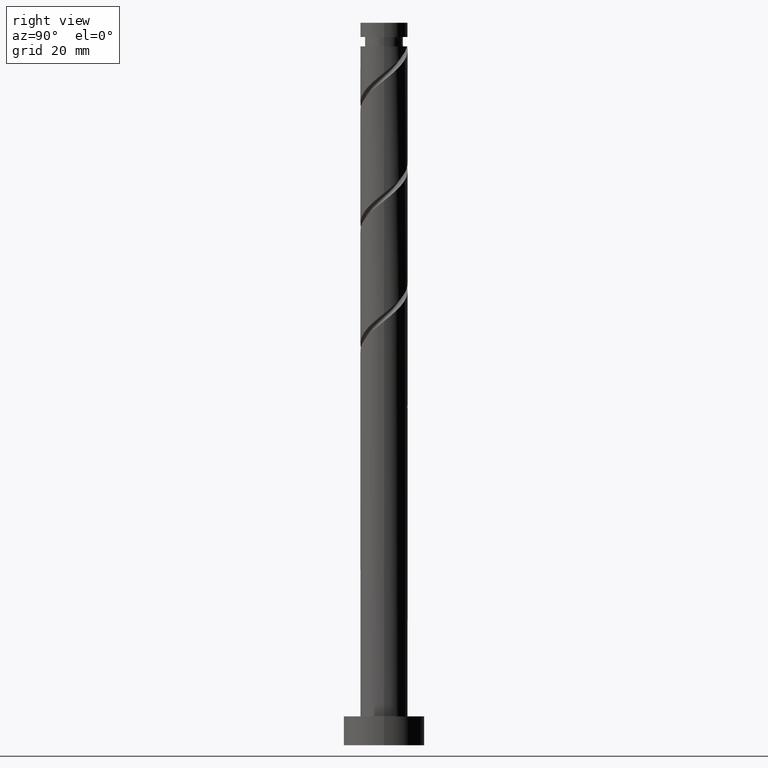
[diagram: clean part render]
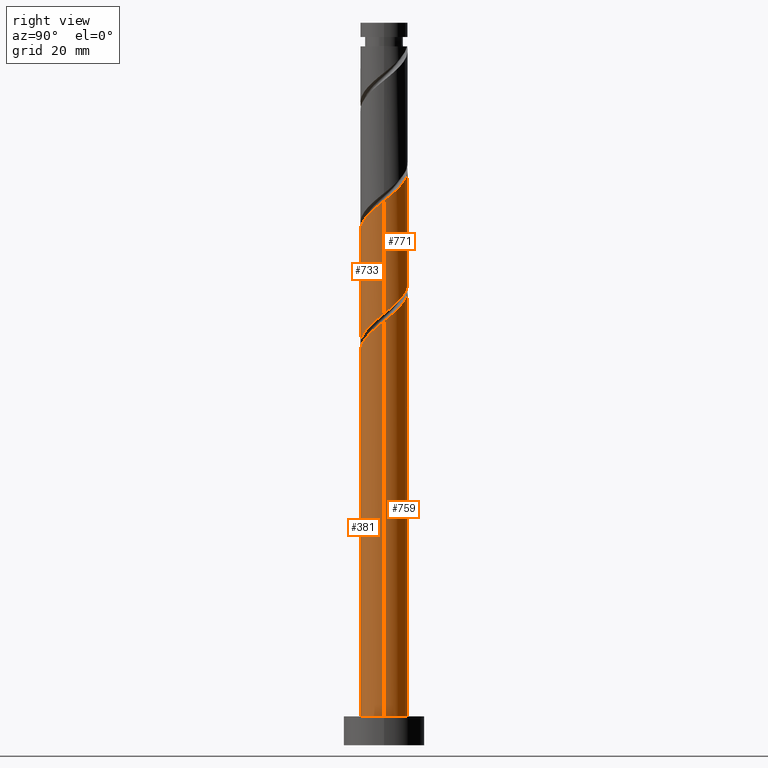
[diagram: same view with one multi-face feature highlighted, each face labeled with its STEP entity id]
A machine part, right view. The highlighted faces form ONE feature: a constant-radius fillet chain: 4 tangent blend faces with common blend radius 4.1 mm. The faces share edges in the B-rep.
Their STEP definitions:
[1] entity #771 (Cylinder):
#31 = CARTESIAN_POINT ( 'NONE',  ( 4.100000000000004086, 0.4120655042562816339, 94.53292070721454365 ) ) ;
#39 = CARTESIAN_POINT ( 'NONE',  ( -2.582896615680652541, 3.249666833500789220, 101.6342519066103023 ) ) ;
#45 = CARTESIAN_POINT ( 'NONE',  ( 0.1795010172034419704, 4.147224233251981751, 79.75925190661027386 ) ) ;
#65 = CARTESIAN_POINT ( 'NONE',  ( 2.017587497666033958, 3.569221300124400642, 78.19675190661027386 ) ) ;
#93 = CARTESIAN_POINT ( 'NONE',  ( 4.099999999999998757, 5.757351468751027389E-15, 74.69488768141388846 ) ) ;
#176 = CARTESIAN_POINT ( 'NONE',  ( 2.292457868830305223, 3.460682934868148930, 97.46758523994360246 ) ) ;
#185 = CARTESIAN_POINT ( 'NONE',  ( 0.000000000000000000, 0.000000000000000000, 125.0000000000000000 ) ) ;
#187 = CARTESIAN_POINT ( 'NONE',  ( 3.569221300124406415, 2.017587497666033958, 95.90508523994358825 ) ) ;
#241 = VERTEX_POINT ( 'NONE', #1258 ) ;
#247 = EDGE_CURVE ( 'NONE', #548, #241, #1321, .T. ) ;
#260 = CARTESIAN_POINT ( 'NONE',  ( 4.100000000000004974, 3.538372256836546220E-15, 94.19861613180670190 ) ) ;
#269 = VERTEX_POINT ( 'NONE', #1147 ) ;
#283 = VECTOR ( 'NONE', #541, 1000.000000000000000 ) ;
#284 = CARTESIAN_POINT ( 'NONE',  ( 3.460682934868145821, 2.292457868830300338, 76.63425190661028807 ) ) ;
#292 = CARTESIAN_POINT ( 'NONE',  ( -1.110847155465531699, 3.999713496394922796, 80.80091857327695948 ) ) ;
#295 = VECTOR ( 'NONE', #1250, 1000.000000000000000 ) ;
#301 = DIRECTION ( 'NONE',  ( -1.000000000000000000, 0.000000000000000000, 0.000000000000000000 ) ) ;
#302 = CARTESIAN_POINT ( 'NONE',  ( -4.073468864823459157, 0.4656730691310462245, 104.2384185732769879 ) ) ;
#378 = VERTEX_POINT ( 'NONE', #93 ) ;
#393 = CARTESIAN_POINT ( 'NONE',  ( -4.017999999999999794, 0.8158896984274289776, 84.44675190661028807 ) ) ;
#409 = CARTESIAN_POINT ( 'NONE',  ( -3.249666833500783447, 2.582896615680648988, 82.88425190661023123 ) ) ;
#419 = CARTESIAN_POINT ( 'NONE',  ( -1.452278379651417151, 3.888775766748021834, 100.5925852399436167 ) ) ;
#427 = CARTESIAN_POINT ( 'NONE',  ( -3.569221300124400642, 2.017587497666033070, 83.40508523994361667 ) ) ;
#518 = CARTESIAN_POINT ( 'NONE',  ( -2.771062351165542559, 3.021789775274398071, 82.36341857327695948 ) ) ;
#527 = CARTESIAN_POINT ( 'NONE',  ( 3.249666833500789664, 2.582896615680652097, 96.42591857327695948 ) ) ;
#541 = DIRECTION ( 'NONE',  ( -0.000000000000000000, -0.000000000000000000, -1.000000000000000000 ) ) ;
#548 = VERTEX_POINT ( 'NONE', #260 ) ;
#551 = CARTESIAN_POINT ( 'NONE',  ( 2.582896615680648988, 3.249666833500783447, 77.67591857327691685 ) ) ;
#552 = CARTESIAN_POINT ( 'NONE',  ( -0.8158896984274283115, 4.018000000000006011, 100.0717519066102739 ) ) ;
#591 = EDGE_CURVE ( 'NONE', #269, #378, #1267, .T. ) ;
#636 = DIRECTION ( 'NONE',  ( -0.000000000000000000, -0.000000000000000000, -1.000000000000000000 ) ) ;
#643 = LINE ( 'NONE', #1383, #283 ) ;
#644 = CARTESIAN_POINT ( 'NONE',  ( 3.888775766748021834, 1.452278379651416040, 95.38425190661024544 ) ) ;
#649 = CARTESIAN_POINT ( 'NONE',  ( -1.701652512147915353, 3.730198215631534531, 81.32175190661027386 ) ) ;
#650 = CARTESIAN_POINT ( 'NONE',  ( -3.021789775274401624, 2.771062351165546556, 102.1550852399436167 ) ) ;
#658 = CARTESIAN_POINT ( 'NONE',  ( -3.888775766748016061, 1.452278379651415596, 83.92591857327694527 ) ) ;
#659 = CARTESIAN_POINT ( 'NONE',  ( -4.100000000000005862, -1.979089567383152402E-15, 104.6152827984734017 ) ) ;
#666 = CARTESIAN_POINT ( 'NONE',  ( -0.4656730691310446701, 4.073468864823453828, 80.28008523994361667 ) ) ;
#701 = EDGE_LOOP ( 'NONE', ( #1447, #840, #1569, #711 ) ) ;
#706 = EDGE_CURVE ( 'NONE', #548, #378, #643, .T. ) ;
#711 = ORIENTED_EDGE ( 'NONE', *, *, #1157, .F. ) ;
#751 = CARTESIAN_POINT ( 'NONE',  ( -2.292457868830301226, 3.460682934868144933, 81.84258523994360246 ) ) ;
#758 = CARTESIAN_POINT ( 'NONE',  ( 1.452278379651415818, 3.888775766748015172, 78.71758523994361667 ) ) ;
#768 = CARTESIAN_POINT ( 'NONE',  ( 0.4656730691310470571, 4.073468864823459157, 99.03008523994361667 ) ) ;
#771 = ADVANCED_FACE ( 'NONE', ( #1121 ), #1391, .T. ) ;
#777 = CARTESIAN_POINT ( 'NONE',  ( -2.017587497666034402, 3.569221300124405971, 101.1134185732769311 ) ) ;
#840 = ORIENTED_EDGE ( 'NONE', *, *, #706, .T. ) ;
#891 = LINE ( 'NONE', #1518, #295 ) ;
#1028 = CARTESIAN_POINT ( 'NONE',  ( 1.701652512147920460, 3.730198215631539860, 97.98841857327695948 ) ) ;
#1034 = CARTESIAN_POINT ( 'NONE',  ( 3.021789775274398959, 2.771062351165541671, 77.15508523994360246 ) ) ;
#1035 = CARTESIAN_POINT ( 'NONE',  ( -3.730198215631539860, 1.701652512147918905, 103.1967519066102881 ) ) ;
#1077 = AXIS2_PLACEMENT_3D ( 'NONE', #185, #636, #301 ) ;
#1121 = FACE_OUTER_BOUND ( 'NONE', #701, .T. ) ;
#1123 = CARTESIAN_POINT ( 'NONE',  ( 4.100000000000004974, 3.538372256836546220E-15, 94.19861613180668769 ) ) ;
#1130 = CARTESIAN_POINT ( 'NONE',  ( 3.999713496394922796, 1.110847155465531033, 75.59258523994360246 ) ) ;
#1131 = CARTESIAN_POINT ( 'NONE',  ( 1.110847155465534586, 3.999713496394928569, 98.50925190661025965 ) ) ;
#1137 = CARTESIAN_POINT ( 'NONE',  ( 4.099999999999998757, 5.757351468751028178E-15, 74.69488768141388846 ) ) ;
#1138 = CARTESIAN_POINT ( 'NONE',  ( -3.999713496394928569, 1.110847155465533476, 103.7175852399435882 ) ) ;
#1146 = CARTESIAN_POINT ( 'NONE',  ( 4.073468864823453828, 0.4656730691310440040, 75.07175190661025965 ) ) ;
#1147 = CARTESIAN_POINT ( 'NONE',  ( -4.100000000000000533, 5.097654946289973959E-15, 85.11155434808055986 ) ) ;
#1154 = CARTESIAN_POINT ( 'NONE',  ( 3.730198215631534975, 1.701652512147914909, 76.11341857327693106 ) ) ;
#1156 = CARTESIAN_POINT ( 'NONE',  ( -3.460682934868151150, 2.292457868830304779, 102.6759185732769595 ) ) ;
#1157 = EDGE_CURVE ( 'NONE', #241, #269, #891, .T. ) ;
#1224 = CARTESIAN_POINT ( 'NONE',  ( -4.100000000000000533, 5.097654946289973959E-15, 85.11155434808055986 ) ) ;
#1250 = DIRECTION ( 'NONE',  ( -0.000000000000000000, -0.000000000000000000, -1.000000000000000000 ) ) ;
#1258 = CARTESIAN_POINT ( 'NONE',  ( -4.100000000000005862, -1.979089567383152402E-15, 104.6152827984733875 ) ) ;
#1267 =( BOUNDED_CURVE ( )  B_SPLINE_CURVE ( 2, ( #1224, #1506, #393, #658, #427, #409, #518, #751, #649, #292, #666, #45, #1499, #758, #65, #551, #1034, #284, #1154, #1130, #1146, #1375, #1137 ),
 .UNSPECIFIED., .F., .T. ) 
 B_SPLINE_CURVE_WITH_KNOTS ( ( 3, 2, 2, 2, 2, 2, 2, 2, 2, 2, 2, 3 ),
 ( 0.6795322023138550271, 0.6875000000000000000, 0.6999999999999999556, 0.7125000000000000222, 0.7249999999999999778, 0.7375000000000000444, 0.7500000000000000000, 0.7624999999999999556, 0.7750000000000000222, 0.7874999999999999778, 0.8000000000000000444, 0.8045322023138551382 ),
 .UNSPECIFIED. ) 
 CURVE ( )  GEOMETRIC_REPRESENTATION_ITEM ( )  RATIONAL_B_SPLINE_CURVE ( ( 0.9039174447099352916, 0.9019565955404643676, 0.9090909090909128354, 0.8978984914501290104, 0.9090909090909128354, 0.8978984914501290104, 0.9090909090909128354, 0.8978984914501290104, 0.9090909090909128354, 0.8978984914501290104, 0.9090909090909128354, 0.8978984914501290104, 0.9090909090909128354, 0.8978984914501290104, 0.9090909090909128354, 0.8978984914501290104, 0.9090909090909128354, 0.8978984914501290104, 0.9090909090909128354, 0.8978984914501290104, 0.9090909090909128354, 0.9050328050005773672, 0.9039174447099351806 ) ) 
 REPRESENTATION_ITEM ( '' )  );
#1268 = CARTESIAN_POINT ( 'NONE',  ( -4.100000000000005862, 0.2335923235303675183, 104.4257717092660869 ) ) ;
#1277 = CARTESIAN_POINT ( 'NONE',  ( 2.771062351165547000, 3.021789775274400291, 96.94675190661025965 ) ) ;
#1321 =( BOUNDED_CURVE ( )  B_SPLINE_CURVE ( 2, ( #1123, #31, #1392, #644, #187, #527, #1277, #176, #1028, #1131, #768, #1507, #552, #419, #777, #39, #650, #1156, #1035, #1138, #302, #1268, #659 ),
 .UNSPECIFIED., .F., .T. ) 
 B_SPLINE_CURVE_WITH_KNOTS ( ( 3, 2, 2, 2, 2, 2, 2, 2, 2, 2, 2, 3 ),
 ( 0.4295322023138553047, 0.4375000000000000000, 0.4499999999999999556, 0.4625000000000000222, 0.4749999999999999778, 0.4875000000000000444, 0.5000000000000000000, 0.5124999999999999556, 0.5250000000000000222, 0.5374999999999999778, 0.5500000000000000444, 0.5545322023138553602 ),
 .UNSPECIFIED. ) 
 CURVE ( )  GEOMETRIC_REPRESENTATION_ITEM ( )  RATIONAL_B_SPLINE_CURVE ( ( 0.9039174447099411758, 0.9019565955404704738, 0.9090909090909189416, 0.8978984914501350056, 0.9090909090909189416, 0.8978984914501350056, 0.9090909090909189416, 0.8978984914501350056, 0.9090909090909189416, 0.8978984914501350056, 0.9090909090909189416, 0.8978984914501350056, 0.9090909090909189416, 0.8978984914501350056, 0.9090909090909189416, 0.8978984914501350056, 0.9090909090909189416, 0.8978984914501350056, 0.9090909090909189416, 0.8978984914501350056, 0.9090909090909189416, 0.9050328050005831404, 0.9039174447099410648 ) ) 
 REPRESENTATION_ITEM ( '' )  );
#1375 = CARTESIAN_POINT ( 'NONE',  ( 4.099999999999999645, 0.2335923235303769829, 74.88439877062116068 ) ) ;
#1383 = CARTESIAN_POINT ( 'NONE',  ( 4.099999999999999645, 5.021051876504147385E-16, 125.0000000000000000 ) ) ;
#1391 = CYLINDRICAL_SURFACE ( 'NONE', #1077, 4.099999999999999645 ) ;
#1392 = CARTESIAN_POINT ( 'NONE',  ( 4.018000000000006011, 0.8158896984274285336, 94.86341857327694527 ) ) ;
#1447 = ORIENTED_EDGE ( 'NONE', *, *, #247, .F. ) ;
#1499 = CARTESIAN_POINT ( 'NONE',  ( 0.8158896984274297548, 4.017999999999999794, 79.23841857327697369 ) ) ;
#1506 = CARTESIAN_POINT ( 'NONE',  ( -4.100000000000001421, 0.4120655042562683112, 84.77724977267271811 ) ) ;
#1507 = CARTESIAN_POINT ( 'NONE',  ( -0.1795010172034405826, 4.147224233251987080, 99.55091857327694527 ) ) ;
#1518 = CARTESIAN_POINT ( 'NONE',  ( -4.099999999999999645, 0.000000000000000000, 125.0000000000000000 ) ) ;
#1569 = ORIENTED_EDGE ( 'NONE', *, *, #591, .F. ) ;
[2] entity #733 (Cylinder):
#11 = CARTESIAN_POINT ( 'NONE',  ( 4.099999999999999645, -0.4120655042562746950, 74.36058310600603249 ) ) ;
#17 = CARTESIAN_POINT ( 'NONE',  ( -1.452278379651415596, -3.888775766748015172, 68.30091857327693106 ) ) ;
#22 = AXIS2_PLACEMENT_3D ( 'NONE', #157, #1026, #1516 ) ;
#23 = CARTESIAN_POINT ( 'NONE',  ( 3.021789775274400291, -2.771062351165546556, 91.73841857327693106 ) ) ;
#24 = CARTESIAN_POINT ( 'NONE',  ( 1.110847155465531033, -3.999713496394922796, 70.38425190661027386 ) ) ;
#46 = CARTESIAN_POINT ( 'NONE',  ( -4.073468864823453828, -0.4656730691310444481, 64.65508523994361667 ) ) ;
#93 = CARTESIAN_POINT ( 'NONE',  ( 4.099999999999998757, 5.757351468751027389E-15, 74.69488768141388846 ) ) ;
#103 = VECTOR ( 'NONE', #1359, 1000.000000000000000 ) ;
#114 = CARTESIAN_POINT ( 'NONE',  ( -3.888775766748021834, -1.452278379651416707, 84.96758523994360246 ) ) ;
#116 = VERTEX_POINT ( 'NONE', #1095 ) ;
#123 = CARTESIAN_POINT ( 'NONE',  ( -4.100000000000000533, 5.097654946289973959E-15, 64.27822101474723127 ) ) ;
#140 = CARTESIAN_POINT ( 'NONE',  ( 0.1795010172034409990, -4.147224233251987080, 89.13425190661027386 ) ) ;
#143 = CARTESIAN_POINT ( 'NONE',  ( -0.1795010172034425810, -4.147224233251981751, 69.34258523994361667 ) ) ;
#149 = CARTESIAN_POINT ( 'NONE',  ( -4.018000000000006011, -0.8158896984274291997, 84.44675190661028807 ) ) ;
#157 = CARTESIAN_POINT ( 'NONE',  ( 0.000000000000000000, 0.000000000000000000, 125.0000000000000000 ) ) ;
#171 = EDGE_CURVE ( 'NONE', #378, #546, #559, .T. ) ;
#260 = CARTESIAN_POINT ( 'NONE',  ( 4.100000000000004974, 3.538372256836546220E-15, 94.19861613180670190 ) ) ;
#283 = VECTOR ( 'NONE', #541, 1000.000000000000000 ) ;
#318 = CARTESIAN_POINT ( 'NONE',  ( -3.730198215631534531, -1.701652512147915131, 65.69675190661028807 ) ) ;
#365 = CARTESIAN_POINT ( 'NONE',  ( -1.701652512147919794, -3.730198215631539860, 87.57175190661027386 ) ) ;
#378 = VERTEX_POINT ( 'NONE', #93 ) ;
#380 = CARTESIAN_POINT ( 'NONE',  ( 3.569221300124400642, -2.017587497666033514, 72.98841857327695948 ) ) ;
#388 = CARTESIAN_POINT ( 'NONE',  ( 2.771062351165541671, -3.021789775274398071, 71.94675190661028807 ) ) ;
#453 = EDGE_CURVE ( 'NONE', #116, #546, #1092, .T. ) ;
#479 = ORIENTED_EDGE ( 'NONE', *, *, #504, .F. ) ;
#481 = CARTESIAN_POINT ( 'NONE',  ( -1.110847155465533920, -3.999713496394928569, 88.09258523994361667 ) ) ;
#488 = CARTESIAN_POINT ( 'NONE',  ( -2.292457868830304779, -3.460682934868151150, 87.05091857327693106 ) ) ;
#499 = CARTESIAN_POINT ( 'NONE',  ( 4.017999999999999794, -0.8158896984274295328, 74.03008523994361667 ) ) ;
#504 = EDGE_CURVE ( 'NONE', #116, #548, #1312, .T. ) ;
#505 = CARTESIAN_POINT ( 'NONE',  ( -2.017587497666033070, -3.569221300124400642, 67.78008523994360246 ) ) ;
#510 = CARTESIAN_POINT ( 'NONE',  ( 4.073468864823459157, -0.4656730691310465575, 93.82175190661030229 ) ) ;
#512 = CARTESIAN_POINT ( 'NONE',  ( -0.8158896984274294217, -4.017999999999999794, 68.82175190661027386 ) ) ;
#541 = DIRECTION ( 'NONE',  ( -0.000000000000000000, -0.000000000000000000, -1.000000000000000000 ) ) ;
#546 = VERTEX_POINT ( 'NONE', #123 ) ;
#548 = VERTEX_POINT ( 'NONE', #260 ) ;
#559 =( BOUNDED_CURVE ( )  B_SPLINE_CURVE ( 2, ( #752, #11, #499, #980, #380, #631, #388, #1227, #1116, #24, #858, #143, #512, #17, #505, #987, #995, #874, #318, #1012, #46, #760, #1249 ),
 .UNSPECIFIED., .F., .T. ) 
 B_SPLINE_CURVE_WITH_KNOTS ( ( 3, 2, 2, 2, 2, 2, 2, 2, 2, 2, 2, 3 ),
 ( 0.8045322023138551382, 0.8125000000000000000, 0.8249999999999999556, 0.8375000000000000222, 0.8499999999999999778, 0.8625000000000000444, 0.8750000000000000000, 0.8874999999999999556, 0.9000000000000000222, 0.9124999999999999778, 0.9250000000000000444, 0.9295322023138552492 ),
 .UNSPECIFIED. ) 
 CURVE ( )  GEOMETRIC_REPRESENTATION_ITEM ( )  RATIONAL_B_SPLINE_CURVE ( ( 0.9039174447099351806, 0.9019565955404644786, 0.9090909090909128354, 0.8978984914501290104, 0.9090909090909128354, 0.8978984914501290104, 0.9090909090909128354, 0.8978984914501290104, 0.9090909090909128354, 0.8978984914501290104, 0.9090909090909128354, 0.8978984914501290104, 0.9090909090909128354, 0.8978984914501290104, 0.9090909090909128354, 0.8978984914501290104, 0.9090909090909128354, 0.8978984914501290104, 0.9090909090909128354, 0.8978984914501290104, 0.9090909090909128354, 0.9050328050005771452, 0.9039174447099349585 ) ) 
 REPRESENTATION_ITEM ( '' )  );
#576 = ORIENTED_EDGE ( 'NONE', *, *, #453, .T. ) ;
#603 = CARTESIAN_POINT ( 'NONE',  ( -4.099999999999999645, 0.000000000000000000, 125.0000000000000000 ) ) ;
#630 = CARTESIAN_POINT ( 'NONE',  ( -0.4656730691310464465, -4.073468864823459157, 88.61341857327695948 ) ) ;
#631 = CARTESIAN_POINT ( 'NONE',  ( 3.249666833500783447, -2.582896615680648988, 72.46758523994360246 ) ) ;
#643 = LINE ( 'NONE', #1383, #283 ) ;
#706 = EDGE_CURVE ( 'NONE', #548, #378, #643, .T. ) ;
#713 = CARTESIAN_POINT ( 'NONE',  ( -4.100000000000005862, -0.4120655042562793580, 84.11625404054784383 ) ) ;
#721 = CARTESIAN_POINT ( 'NONE',  ( 3.730198215631539860, -1.701652512147919794, 92.78008523994358825 ) ) ;
#722 = ORIENTED_EDGE ( 'NONE', *, *, #171, .F. ) ;
#733 = ADVANCED_FACE ( 'NONE', ( #1011 ), #1240, .T. ) ;
#752 = CARTESIAN_POINT ( 'NONE',  ( 4.099999999999998757, 5.757351468751028178E-15, 74.69488768141388846 ) ) ;
#760 = CARTESIAN_POINT ( 'NONE',  ( -4.100000000000000533, -0.2335923235303719037, 64.46773210395450349 ) ) ;
#838 = CARTESIAN_POINT ( 'NONE',  ( 3.999713496394928569, -1.110847155465533920, 93.30091857327694527 ) ) ;
#855 = CARTESIAN_POINT ( 'NONE',  ( 3.460682934868151150, -2.292457868830305223, 92.25925190661028807 ) ) ;
#858 = CARTESIAN_POINT ( 'NONE',  ( 0.4656730691310442816, -4.073468864823453828, 69.86341857327693106 ) ) ;
#874 = CARTESIAN_POINT ( 'NONE',  ( -3.460682934868144933, -2.292457868830300338, 66.21758523994361667 ) ) ;
#967 = CARTESIAN_POINT ( 'NONE',  ( 4.100000000000004974, 3.538372256836546220E-15, 94.19861613180668769 ) ) ;
#977 = CARTESIAN_POINT ( 'NONE',  ( -2.771062351165546556, -3.021789775274400291, 86.53008523994361667 ) ) ;
#980 = CARTESIAN_POINT ( 'NONE',  ( 3.888775766748015172, -1.452278379651415818, 73.50925190661025965 ) ) ;
#986 = CARTESIAN_POINT ( 'NONE',  ( -3.569221300124405971, -2.017587497666034402, 85.48841857327694527 ) ) ;
#987 = CARTESIAN_POINT ( 'NONE',  ( -2.582896615680648988, -3.249666833500783447, 67.25925190661027386 ) ) ;
#995 = CARTESIAN_POINT ( 'NONE',  ( -3.021789775274398071, -2.771062351165541671, 66.73841857327694527 ) ) ;
#1011 = FACE_OUTER_BOUND ( 'NONE', #1396, .T. ) ;
#1012 = CARTESIAN_POINT ( 'NONE',  ( -3.999713496394922796, -1.110847155465531699, 65.17591857327695948 ) ) ;
#1026 = DIRECTION ( 'NONE',  ( -0.000000000000000000, -0.000000000000000000, -1.000000000000000000 ) ) ;
#1078 = ORIENTED_EDGE ( 'NONE', *, *, #706, .F. ) ;
#1092 = LINE ( 'NONE', #603, #103 ) ;
#1095 = CARTESIAN_POINT ( 'NONE',  ( -4.100000000000005862, -4.078123957031952030E-15, 83.78194946514000208 ) ) ;
#1116 = CARTESIAN_POINT ( 'NONE',  ( 1.701652512147915131, -3.730198215631534531, 70.90508523994363088 ) ) ;
#1214 = CARTESIAN_POINT ( 'NONE',  ( 2.017587497666033958, -3.569221300124405971, 90.69675190661027386 ) ) ;
#1227 = CARTESIAN_POINT ( 'NONE',  ( 2.292457868830300338, -3.460682934868145821, 71.42591857327694527 ) ) ;
#1234 = CARTESIAN_POINT ( 'NONE',  ( 0.8158896984274288666, -4.018000000000006011, 89.65508523994361667 ) ) ;
#1240 = CYLINDRICAL_SURFACE ( 'NONE', #22, 4.099999999999999645 ) ;
#1249 = CARTESIAN_POINT ( 'NONE',  ( -4.100000000000000533, 5.097654946289973959E-15, 64.27822101474723127 ) ) ;
#1312 =( BOUNDED_CURVE ( )  B_SPLINE_CURVE ( 2, ( #1326, #713, #149, #114, #986, #1474, #977, #488, #365, #481, #630, #140, #1234, #1449, #1214, #1465, #23, #855, #721, #838, #510, #1456, #967 ),
 .UNSPECIFIED., .F., .T. ) 
 B_SPLINE_CURVE_WITH_KNOTS ( ( 3, 2, 2, 2, 2, 2, 2, 2, 2, 2, 2, 3 ),
 ( 0.3045322023138552492, 0.3125000000000000000, 0.3249999999999999556, 0.3375000000000000222, 0.3499999999999999778, 0.3625000000000000444, 0.3750000000000000000, 0.3874999999999999556, 0.4000000000000000222, 0.4124999999999999778, 0.4250000000000000444, 0.4295322023138553047 ),
 .UNSPECIFIED. ) 
 CURVE ( )  GEOMETRIC_REPRESENTATION_ITEM ( )  RATIONAL_B_SPLINE_CURVE ( ( 0.9039174447099410648, 0.9019565955404704738, 0.9090909090909189416, 0.8978984914501350056, 0.9090909090909189416, 0.8978984914501350056, 0.9090909090909189416, 0.8978984914501350056, 0.9090909090909189416, 0.8978984914501350056, 0.9090909090909189416, 0.8978984914501350056, 0.9090909090909189416, 0.8978984914501350056, 0.9090909090909189416, 0.8978984914501350056, 0.9090909090909189416, 0.8978984914501350056, 0.9090909090909189416, 0.8978984914501350056, 0.9090909090909189416, 0.9050328050005832514, 0.9039174447099411758 ) ) 
 REPRESENTATION_ITEM ( '' )  );
#1326 = CARTESIAN_POINT ( 'NONE',  ( -4.100000000000005862, -4.078123957031952030E-15, 83.78194946514000208 ) ) ;
#1359 = DIRECTION ( 'NONE',  ( -0.000000000000000000, -0.000000000000000000, -1.000000000000000000 ) ) ;
#1383 = CARTESIAN_POINT ( 'NONE',  ( 4.099999999999999645, 5.021051876504147385E-16, 125.0000000000000000 ) ) ;
#1396 = EDGE_LOOP ( 'NONE', ( #1078, #479, #576, #722 ) ) ;
#1449 = CARTESIAN_POINT ( 'NONE',  ( 1.452278379651416484, -3.888775766748021834, 90.17591857327694527 ) ) ;
#1456 = CARTESIAN_POINT ( 'NONE',  ( 4.100000000000005862, -0.2335923235303708767, 94.00910504259941547 ) ) ;
#1465 = CARTESIAN_POINT ( 'NONE',  ( 2.582896615680652097, -3.249666833500789220, 91.21758523994361667 ) ) ;
#1474 = CARTESIAN_POINT ( 'NONE',  ( -3.249666833500789220, -2.582896615680652541, 86.00925190661028807 ) ) ;
#1516 = DIRECTION ( 'NONE',  ( -1.000000000000000000, 0.000000000000000000, 0.000000000000000000 ) ) ;
[3] entity #759 (Cylinder):
#6 = EDGE_CURVE ( 'NONE', #1351, #58, #982, .T. ) ;
#10 = AXIS2_PLACEMENT_3D ( 'NONE', #1178, #1414, #211 ) ;
#25 = CARTESIAN_POINT ( 'NONE',  ( -3.249666833500783447, 2.582896615680648988, 62.05091857327694527 ) ) ;
#38 = CYLINDRICAL_SURFACE ( 'NONE', #684, 4.099999999999999645 ) ;
#58 = VERTEX_POINT ( 'NONE', #1070 ) ;
#74 = CARTESIAN_POINT ( 'NONE',  ( 4.100000000000004974, 3.538372256836546220E-15, 73.36528279847335909 ) ) ;
#84 = CARTESIAN_POINT ( 'NONE',  ( 4.018000000000006011, 0.8158896984274285336, 74.03008523994363088 ) ) ;
#94 = LINE ( 'NONE', #328, #1103 ) ;
#103 = VECTOR ( 'NONE', #1359, 1000.000000000000000 ) ;
#116 = VERTEX_POINT ( 'NONE', #1095 ) ;
#121 =( BOUNDED_CURVE ( )  B_SPLINE_CURVE ( 2, ( #294, #1124, #536, #1139, #519, #25, #996, #1005, #396, #278, #1242, #769, #1493 ),
 .UNSPECIFIED., .F., .T. ) 
 B_SPLINE_CURVE_WITH_KNOTS ( ( 3, 2, 2, 2, 2, 2, 3 ),
 ( 0.9295322023138552492, 0.9375000000000000000, 0.9499999999999999556, 0.9625000000000000222, 0.9749999999999999778, 0.9875000000000000444, 1.000000000000000000 ),
 .UNSPECIFIED. ) 
 CURVE ( )  GEOMETRIC_REPRESENTATION_ITEM ( )  RATIONAL_B_SPLINE_CURVE ( ( 0.9039174447099349585, 0.9019565955404644786, 0.9090909090909128354, 0.8978984914501290104, 0.9090909090909128354, 0.8978984914501290104, 0.9090909090909128354, 0.8978984914501290104, 0.9090909090909128354, 0.8978984914501290104, 0.9090909090909128354, 0.8978984914501290104, 0.9090909090909128354 ) ) 
 REPRESENTATION_ITEM ( '' )  );
#123 = CARTESIAN_POINT ( 'NONE',  ( -4.100000000000000533, 5.097654946289973959E-15, 64.27822101474723127 ) ) ;
#129 = EDGE_CURVE ( 'NONE', #910, #1046, #1145, .T. ) ;
#131 = CARTESIAN_POINT ( 'NONE',  ( 1.701652512147920460, 3.730198215631539860, 77.15508523994360246 ) ) ;
#134 = CARTESIAN_POINT ( 'NONE',  ( -3.730198215631539860, 1.701652512147918905, 61.53008523994361667 ) ) ;
#151 = ORIENTED_EDGE ( 'NONE', *, *, #158, .T. ) ;
#152 = DIRECTION ( 'NONE',  ( -0.000000000000000000, -0.000000000000000000, -1.000000000000000000 ) ) ;
#158 = EDGE_CURVE ( 'NONE', #812, #1351, #738, .T. ) ;
#179 = VECTOR ( 'NONE', #152, 1000.000000000000000 ) ;
#207 = EDGE_LOOP ( 'NONE', ( #1102, #151, #1081, #826, #394, #1482, #849, #652 ) ) ;
#211 = DIRECTION ( 'NONE',  ( 0.000000000000000000, 1.000000000000000000, -3.384826294588892334E-15 ) ) ;
#218 = CARTESIAN_POINT ( 'NONE',  ( 3.249666833500789664, 2.582896615680652097, 75.59258523994360246 ) ) ;
#248 = CARTESIAN_POINT ( 'NONE',  ( -3.999713496394928569, 1.110847155465533476, 62.05091857327695237 ) ) ;
#252 = CARTESIAN_POINT ( 'NONE',  ( -4.100000000000005862, 0.2335923235303732637, 83.59243837593272985 ) ) ;
#261 = VERTEX_POINT ( 'NONE', #1406 ) ;
#262 = CARTESIAN_POINT ( 'NONE',  ( -1.452278379651417151, 3.888775766748021834, 58.92591857327694527 ) ) ;
#277 = CARTESIAN_POINT ( 'NONE',  ( -4.073468864823459157, 0.4656730691310462245, 62.57175190661027386 ) ) ;
#278 = CARTESIAN_POINT ( 'NONE',  ( -1.110847155465531699, 3.999713496394922796, 59.96758523994361667 ) ) ;
#294 = CARTESIAN_POINT ( 'NONE',  ( -4.100000000000000533, 5.097654946289973959E-15, 64.27822101474723127 ) ) ;
#328 = CARTESIAN_POINT ( 'NONE',  ( -4.099999999999999645, 0.000000000000000000, 125.0000000000000000 ) ) ;
#344 = CARTESIAN_POINT ( 'NONE',  ( 0.000000000000000000, 0.000000000000000000, 5.000000000000000000 ) ) ;
#352 = CARTESIAN_POINT ( 'NONE',  ( -0.8158896984274283115, 4.018000000000006011, 58.40508523994361667 ) ) ;
#376 = CARTESIAN_POINT ( 'NONE',  ( 0.4656730691310470571, 4.073468864823459157, 78.19675190661028807 ) ) ;
#394 = ORIENTED_EDGE ( 'NONE', *, *, #129, .F. ) ;
#396 = CARTESIAN_POINT ( 'NONE',  ( -1.701652512147915353, 3.730198215631534531, 60.48841857327695237 ) ) ;
#441 = EDGE_CURVE ( 'NONE', #812, #116, #938, .T. ) ;
#453 = EDGE_CURVE ( 'NONE', #116, #546, #1092, .T. ) ;
#457 = AXIS2_PLACEMENT_3D ( 'NONE', #344, #1320, #1159 ) ;
#483 = CARTESIAN_POINT ( 'NONE',  ( -4.100000000000004974, 0.2335923235303765388, 62.75910504259940836 ) ) ;
#495 = CARTESIAN_POINT ( 'NONE',  ( -4.073468864823459157, 0.4656730691310462245, 83.40508523994363088 ) ) ;
#519 = CARTESIAN_POINT ( 'NONE',  ( -3.569221300124400642, 2.017587497666033070, 62.57175190661028097 ) ) ;
#533 = DIRECTION ( 'NONE',  ( -0.000000000000000000, -0.000000000000000000, -1.000000000000000000 ) ) ;
#536 = CARTESIAN_POINT ( 'NONE',  ( -4.017999999999999794, 0.8158896984274289776, 63.61341857327695948 ) ) ;
#546 = VERTEX_POINT ( 'NONE', #123 ) ;
#581 = CARTESIAN_POINT ( 'NONE',  ( 4.100000000000004974, 3.538372256836546220E-15, 73.36528279847335909 ) ) ;
#598 = CARTESIAN_POINT ( 'NONE',  ( -4.100000000000005862, -4.078123957031952030E-15, 83.78194946514000208 ) ) ;
#603 = CARTESIAN_POINT ( 'NONE',  ( -4.099999999999999645, 0.000000000000000000, 125.0000000000000000 ) ) ;
#625 = CARTESIAN_POINT ( 'NONE',  ( -2.582896615680652541, 3.249666833500789220, 59.96758523994360957 ) ) ;
#652 = ORIENTED_EDGE ( 'NONE', *, *, #453, .F. ) ;
#678 = CARTESIAN_POINT ( 'NONE',  ( 4.099999999999999645, 5.021051876504147385E-16, 5.000000000000000000 ) ) ;
#684 = AXIS2_PLACEMENT_3D ( 'NONE', #889, #533, #1018 ) ;
#725 = CARTESIAN_POINT ( 'NONE',  ( -2.017587497666034402, 3.569221300124405971, 59.44675190661027386 ) ) ;
#729 = CARTESIAN_POINT ( 'NONE',  ( -3.730198215631539860, 1.701652512147918905, 82.36341857327693106 ) ) ;
#731 = CARTESIAN_POINT ( 'NONE',  ( 4.099999999999999645, 5.021051876504147385E-16, 125.0000000000000000 ) ) ;
#738 = LINE ( 'NONE', #731, #179 ) ;
#759 = ADVANCED_FACE ( 'NONE', ( #784 ), #38, .T. ) ;
#769 = CARTESIAN_POINT ( 'NONE',  ( 0.1795010172034419704, 4.147224233251981751, 58.92591857327693106 ) ) ;
#784 = FACE_OUTER_BOUND ( 'NONE', #207, .T. ) ;
#812 = VERTEX_POINT ( 'NONE', #74 ) ;
#826 = ORIENTED_EDGE ( 'NONE', *, *, #1345, .F. ) ;
#830 = CARTESIAN_POINT ( 'NONE',  ( -0.1795010172034405826, 4.147224233251987080, 78.71758523994363088 ) ) ;
#845 = CARTESIAN_POINT ( 'NONE',  ( 2.771062351165547000, 3.021789775274400291, 76.11341857327693106 ) ) ;
#849 = ORIENTED_EDGE ( 'NONE', *, *, #1296, .F. ) ;
#864 = CARTESIAN_POINT ( 'NONE',  ( -1.452278379651417151, 3.888775766748021834, 79.75925190661030229 ) ) ;
#889 = CARTESIAN_POINT ( 'NONE',  ( 0.000000000000000000, 0.000000000000000000, 125.0000000000000000 ) ) ;
#910 = VERTEX_POINT ( 'NONE', #352 ) ;
#929 = CARTESIAN_POINT ( 'NONE',  ( 3.888775766748021834, 1.452278379651416040, 74.55091857327694527 ) ) ;
#938 =( BOUNDED_CURVE ( )  B_SPLINE_CURVE ( 2, ( #581, #1169, #84, #929, #1420, #218, #845, #1572, #131, #1480, #376, #830, #1108, #864, #1341, #960, #1197, #1100, #729, #1114, #495, #252, #598 ),
 .UNSPECIFIED., .F., .T. ) 
 B_SPLINE_CURVE_WITH_KNOTS ( ( 3, 2, 2, 2, 2, 2, 2, 2, 2, 2, 2, 3 ),
 ( 0.1795322023138553047, 0.1875000000000000000, 0.1999999999999999556, 0.2125000000000000222, 0.2249999999999999778, 0.2375000000000000444, 0.2500000000000000000, 0.2624999999999999556, 0.2750000000000000222, 0.2874999999999999778, 0.3000000000000000444, 0.3045322023138552492 ),
 .UNSPECIFIED. ) 
 CURVE ( )  GEOMETRIC_REPRESENTATION_ITEM ( )  RATIONAL_B_SPLINE_CURVE ( ( 0.9039174447099411758, 0.9019565955404704738, 0.9090909090909189416, 0.8978984914501350056, 0.9090909090909189416, 0.8978984914501350056, 0.9090909090909189416, 0.8978984914501350056, 0.9090909090909189416, 0.8978984914501350056, 0.9090909090909189416, 0.8978984914501350056, 0.9090909090909189416, 0.8978984914501350056, 0.9090909090909189416, 0.8978984914501350056, 0.9090909090909189416, 0.8978984914501350056, 0.9090909090909189416, 0.8978984914501350056, 0.9090909090909189416, 0.9050328050005832514, 0.9039174447099410648 ) ) 
 REPRESENTATION_ITEM ( '' )  );
#960 = CARTESIAN_POINT ( 'NONE',  ( -2.582896615680652541, 3.249666833500789220, 80.80091857327694527 ) ) ;
#972 = CARTESIAN_POINT ( 'NONE',  ( -3.021789775274401624, 2.771062351165546556, 60.48841857327695237 ) ) ;
#982 = CIRCLE ( 'NONE', #457, 4.099999999999999645 ) ;
#996 = CARTESIAN_POINT ( 'NONE',  ( -2.771062351165542559, 3.021789775274398071, 61.53008523994360957 ) ) ;
#1005 = CARTESIAN_POINT ( 'NONE',  ( -2.292457868830301226, 3.460682934868144933, 61.00925190661026676 ) ) ;
#1018 = DIRECTION ( 'NONE',  ( -1.000000000000000000, 0.000000000000000000, 0.000000000000000000 ) ) ;
#1027 = CIRCLE ( 'NONE', #10, 4.099999999999999645 ) ;
#1046 = VERTEX_POINT ( 'NONE', #1555 ) ;
#1070 = CARTESIAN_POINT ( 'NONE',  ( -4.099999999999999645, 0.000000000000000000, 5.000000000000000000 ) ) ;
#1081 = ORIENTED_EDGE ( 'NONE', *, *, #6, .T. ) ;
#1092 = LINE ( 'NONE', #603, #103 ) ;
#1095 = CARTESIAN_POINT ( 'NONE',  ( -4.100000000000005862, -4.078123957031952030E-15, 83.78194946514000208 ) ) ;
#1100 = CARTESIAN_POINT ( 'NONE',  ( -3.460682934868151150, 2.292457868830304779, 81.84258523994363088 ) ) ;
#1102 = ORIENTED_EDGE ( 'NONE', *, *, #441, .F. ) ;
#1103 = VECTOR ( 'NONE', #1295, 1000.000000000000000 ) ;
#1108 = CARTESIAN_POINT ( 'NONE',  ( -0.8158896984274283115, 4.018000000000006011, 79.23841857327693106 ) ) ;
#1114 = CARTESIAN_POINT ( 'NONE',  ( -3.999713496394928569, 1.110847155465533476, 82.88425190661025965 ) ) ;
#1124 = CARTESIAN_POINT ( 'NONE',  ( -4.099999999999999645, 0.4120655042562798021, 63.94391643933937530 ) ) ;
#1139 = CARTESIAN_POINT ( 'NONE',  ( -3.888775766748016061, 1.452278379651415596, 63.09258523994361667 ) ) ;
#1145 =( BOUNDED_CURVE ( )  B_SPLINE_CURVE ( 2, ( #1566, #262, #725, #625, #972, #1235, #134, #248, #277, #483, #1344 ),
 .UNSPECIFIED., .F., .T. ) 
 B_SPLINE_CURVE_WITH_KNOTS ( ( 3, 2, 2, 2, 2, 3 ),
 ( 0.000000000000000000, 0.01249999999999995559, 0.02500000000000002220, 0.03749999999999997780, 0.05000000000000004441, 0.05453220231385519368 ),
 .UNSPECIFIED. ) 
 CURVE ( )  GEOMETRIC_REPRESENTATION_ITEM ( )  RATIONAL_B_SPLINE_CURVE ( ( 0.9090909090909189416, 0.8978984914501350056, 0.9090909090909189416, 0.8978984914501350056, 0.9090909090909189416, 0.8978984914501350056, 0.9090909090909189416, 0.8978984914501350056, 0.9090909090909189416, 0.9050328050005834735, 0.9039174447099413978 ) ) 
 REPRESENTATION_ITEM ( '' )  );
#1159 = DIRECTION ( 'NONE',  ( 1.000000000000000000, 0.000000000000000000, 0.000000000000000000 ) ) ;
#1169 = CARTESIAN_POINT ( 'NONE',  ( 4.100000000000004086, 0.4120655042562816339, 73.69958737388121506 ) ) ;
#1178 = CARTESIAN_POINT ( 'NONE',  ( 0.000000000000000000, 0.000000000000000000, 58.40508523994363088 ) ) ;
#1197 = CARTESIAN_POINT ( 'NONE',  ( -3.021789775274401624, 2.771062351165546556, 81.32175190661027386 ) ) ;
#1235 = CARTESIAN_POINT ( 'NONE',  ( -3.460682934868151150, 2.292457868830304779, 61.00925190661028807 ) ) ;
#1242 = CARTESIAN_POINT ( 'NONE',  ( -0.4656730691310446701, 4.073468864823453828, 59.44675190661029518 ) ) ;
#1295 = DIRECTION ( 'NONE',  ( -0.000000000000000000, -0.000000000000000000, -1.000000000000000000 ) ) ;
#1296 = EDGE_CURVE ( 'NONE', #546, #261, #121, .T. ) ;
#1320 = DIRECTION ( 'NONE',  ( 0.000000000000000000, 0.000000000000000000, 1.000000000000000000 ) ) ;
#1341 = CARTESIAN_POINT ( 'NONE',  ( -2.017587497666034402, 3.569221300124405971, 80.28008523994360246 ) ) ;
#1344 = CARTESIAN_POINT ( 'NONE',  ( -4.100000000000005862, -4.078123957031952030E-15, 62.94861613180668769 ) ) ;
#1345 = EDGE_CURVE ( 'NONE', #1046, #58, #94, .T. ) ;
#1351 = VERTEX_POINT ( 'NONE', #678 ) ;
#1359 = DIRECTION ( 'NONE',  ( -0.000000000000000000, -0.000000000000000000, -1.000000000000000000 ) ) ;
#1395 = EDGE_CURVE ( 'NONE', #910, #261, #1027, .T. ) ;
#1406 = CARTESIAN_POINT ( 'NONE',  ( 0.8158896984274296438, 4.017999999999999794, 58.40508523994361667 ) ) ;
#1414 = DIRECTION ( 'NONE',  ( 0.000000000000000000, -4.231032868236114826E-15, -1.000000000000000000 ) ) ;
#1420 = CARTESIAN_POINT ( 'NONE',  ( 3.569221300124406415, 2.017587497666033958, 75.07175190661025965 ) ) ;
#1480 = CARTESIAN_POINT ( 'NONE',  ( 1.110847155465534586, 3.999713496394928569, 77.67591857327691685 ) ) ;
#1482 = ORIENTED_EDGE ( 'NONE', *, *, #1395, .T. ) ;
#1493 = CARTESIAN_POINT ( 'NONE',  ( 0.8158896984274296438, 4.017999999999999794, 58.40508523994361667 ) ) ;
#1555 = CARTESIAN_POINT ( 'NONE',  ( -4.100000000000005862, -4.078123957031952030E-15, 62.94861613180668769 ) ) ;
#1566 = CARTESIAN_POINT ( 'NONE',  ( -0.8158896984274283115, 4.018000000000006011, 58.40508523994361667 ) ) ;
#1572 = CARTESIAN_POINT ( 'NONE',  ( 2.292457868830305223, 3.460682934868148930, 76.63425190661027386 ) ) ;
[4] entity #381 (Cylinder):
#58 = VERTEX_POINT ( 'NONE', #1070 ) ;
#74 = CARTESIAN_POINT ( 'NONE',  ( 4.100000000000004974, 3.538372256836546220E-15, 73.36528279847335909 ) ) ;
#75 = CARTESIAN_POINT ( 'NONE',  ( -4.100000000000004974, -0.4120655042562760273, 63.28292070721451523 ) ) ;
#77 = AXIS2_PLACEMENT_3D ( 'NONE', #353, #707, #677 ) ;
#79 = AXIS2_PLACEMENT_3D ( 'NONE', #436, #1066, #203 ) ;
#94 = LINE ( 'NONE', #328, #1103 ) ;
#99 = CARTESIAN_POINT ( 'NONE',  ( -0.4656730691310464465, -4.073468864823459157, 67.78008523994361667 ) ) ;
#101 = EDGE_LOOP ( 'NONE', ( #178, #1206, #672, #464 ) ) ;
#107 = CARTESIAN_POINT ( 'NONE',  ( -3.888775766748021834, -1.452278379651416707, 64.13425190661028807 ) ) ;
#152 = DIRECTION ( 'NONE',  ( -0.000000000000000000, -0.000000000000000000, -1.000000000000000000 ) ) ;
#158 = EDGE_CURVE ( 'NONE', #812, #1351, #738, .T. ) ;
#178 = ORIENTED_EDGE ( 'NONE', *, *, #158, .F. ) ;
#179 = VECTOR ( 'NONE', #152, 1000.000000000000000 ) ;
#203 = DIRECTION ( 'NONE',  ( 1.000000000000000000, 0.000000000000000000, 0.000000000000000000 ) ) ;
#204 = CARTESIAN_POINT ( 'NONE',  ( 3.460682934868151150, -2.292457868830305223, 71.42591857327695948 ) ) ;
#328 = CARTESIAN_POINT ( 'NONE',  ( -4.099999999999999645, 0.000000000000000000, 125.0000000000000000 ) ) ;
#341 = CARTESIAN_POINT ( 'NONE',  ( -3.569221300124405971, -2.017587497666034402, 64.65508523994361667 ) ) ;
#353 = CARTESIAN_POINT ( 'NONE',  ( 0.000000000000000000, 0.000000000000000000, 125.0000000000000000 ) ) ;
#381 = ADVANCED_FACE ( 'NONE', ( #954 ), #460, .T. ) ;
#432 = EDGE_CURVE ( 'NONE', #1046, #812, #715, .T. ) ;
#436 = CARTESIAN_POINT ( 'NONE',  ( 0.000000000000000000, 0.000000000000000000, 5.000000000000000000 ) ) ;
#445 = CARTESIAN_POINT ( 'NONE',  ( 2.017587497666033958, -3.569221300124405971, 69.86341857327694527 ) ) ;
#454 = CARTESIAN_POINT ( 'NONE',  ( 3.021789775274400291, -2.771062351165546556, 70.90508523994363088 ) ) ;
#460 = CYLINDRICAL_SURFACE ( 'NONE', #77, 4.099999999999999645 ) ;
#464 = ORIENTED_EDGE ( 'NONE', *, *, #869, .T. ) ;
#672 = ORIENTED_EDGE ( 'NONE', *, *, #1345, .T. ) ;
#677 = DIRECTION ( 'NONE',  ( -1.000000000000000000, 0.000000000000000000, 0.000000000000000000 ) ) ;
#678 = CARTESIAN_POINT ( 'NONE',  ( 4.099999999999999645, 5.021051876504147385E-16, 5.000000000000000000 ) ) ;
#685 = CARTESIAN_POINT ( 'NONE',  ( -1.701652512147919794, -3.730198215631539860, 66.73841857327694527 ) ) ;
#700 = CARTESIAN_POINT ( 'NONE',  ( 4.100000000000005862, -0.2335923235303708767, 73.17577170926607266 ) ) ;
#707 = DIRECTION ( 'NONE',  ( -0.000000000000000000, -0.000000000000000000, -1.000000000000000000 ) ) ;
#715 =( BOUNDED_CURVE ( )  B_SPLINE_CURVE ( 2, ( #1043, #75, #1548, #107, #341, #1051, #921, #1302, #685, #817, #99, #946, #1434, #1531, #445, #1309, #454, #204, #1287, #1413, #809, #700, #801 ),
 .UNSPECIFIED., .F., .T. ) 
 B_SPLINE_CURVE_WITH_KNOTS ( ( 3, 2, 2, 2, 2, 2, 2, 2, 2, 2, 2, 3 ),
 ( 0.05453220231385518674, 0.06250000000000000000, 0.07499999999999995559, 0.08750000000000002220, 0.09999999999999997780, 0.1125000000000000444, 0.1250000000000000000, 0.1374999999999999556, 0.1500000000000000222, 0.1624999999999999778, 0.1750000000000000444, 0.1795322023138553047 ),
 .UNSPECIFIED. ) 
 CURVE ( )  GEOMETRIC_REPRESENTATION_ITEM ( )  RATIONAL_B_SPLINE_CURVE ( ( 0.9039174447099413978, 0.9019565955404706958, 0.9090909090909189416, 0.8978984914501350056, 0.9090909090909189416, 0.8978984914501350056, 0.9090909090909189416, 0.8978984914501350056, 0.9090909090909189416, 0.8978984914501350056, 0.9090909090909189416, 0.8978984914501350056, 0.9090909090909189416, 0.8978984914501350056, 0.9090909090909189416, 0.8978984914501350056, 0.9090909090909189416, 0.8978984914501350056, 0.9090909090909189416, 0.8978984914501350056, 0.9090909090909189416, 0.9050328050005832514, 0.9039174447099411758 ) ) 
 REPRESENTATION_ITEM ( '' )  );
#724 = CIRCLE ( 'NONE', #79, 4.099999999999999645 ) ;
#731 = CARTESIAN_POINT ( 'NONE',  ( 4.099999999999999645, 5.021051876504147385E-16, 125.0000000000000000 ) ) ;
#738 = LINE ( 'NONE', #731, #179 ) ;
#801 = CARTESIAN_POINT ( 'NONE',  ( 4.100000000000004974, 3.538372256836546220E-15, 73.36528279847335909 ) ) ;
#809 = CARTESIAN_POINT ( 'NONE',  ( 4.073468864823459157, -0.4656730691310465575, 72.98841857327695948 ) ) ;
#812 = VERTEX_POINT ( 'NONE', #74 ) ;
#817 = CARTESIAN_POINT ( 'NONE',  ( -1.110847155465533920, -3.999713496394928569, 67.25925190661027386 ) ) ;
#869 = EDGE_CURVE ( 'NONE', #58, #1351, #724, .T. ) ;
#921 = CARTESIAN_POINT ( 'NONE',  ( -2.771062351165546556, -3.021789775274400291, 65.69675190661028807 ) ) ;
#946 = CARTESIAN_POINT ( 'NONE',  ( 0.1795010172034409990, -4.147224233251987080, 68.30091857327693106 ) ) ;
#954 = FACE_OUTER_BOUND ( 'NONE', #101, .T. ) ;
#1043 = CARTESIAN_POINT ( 'NONE',  ( -4.100000000000005862, -4.078123957031952030E-15, 62.94861613180668769 ) ) ;
#1046 = VERTEX_POINT ( 'NONE', #1555 ) ;
#1051 = CARTESIAN_POINT ( 'NONE',  ( -3.249666833500789220, -2.582896615680652541, 65.17591857327694527 ) ) ;
#1066 = DIRECTION ( 'NONE',  ( 0.000000000000000000, 0.000000000000000000, 1.000000000000000000 ) ) ;
#1070 = CARTESIAN_POINT ( 'NONE',  ( -4.099999999999999645, 0.000000000000000000, 5.000000000000000000 ) ) ;
#1103 = VECTOR ( 'NONE', #1295, 1000.000000000000000 ) ;
#1206 = ORIENTED_EDGE ( 'NONE', *, *, #432, .F. ) ;
#1287 = CARTESIAN_POINT ( 'NONE',  ( 3.730198215631539860, -1.701652512147919794, 71.94675190661025965 ) ) ;
#1295 = DIRECTION ( 'NONE',  ( -0.000000000000000000, -0.000000000000000000, -1.000000000000000000 ) ) ;
#1302 = CARTESIAN_POINT ( 'NONE',  ( -2.292457868830304779, -3.460682934868151150, 66.21758523994361667 ) ) ;
#1309 = CARTESIAN_POINT ( 'NONE',  ( 2.582896615680652097, -3.249666833500789220, 70.38425190661028807 ) ) ;
#1345 = EDGE_CURVE ( 'NONE', #1046, #58, #94, .T. ) ;
#1351 = VERTEX_POINT ( 'NONE', #678 ) ;
#1413 = CARTESIAN_POINT ( 'NONE',  ( 3.999713496394928569, -1.110847155465533920, 72.46758523994361667 ) ) ;
#1434 = CARTESIAN_POINT ( 'NONE',  ( 0.8158896984274288666, -4.018000000000006011, 68.82175190661027386 ) ) ;
#1531 = CARTESIAN_POINT ( 'NONE',  ( 1.452278379651416484, -3.888775766748021834, 69.34258523994361667 ) ) ;
#1548 = CARTESIAN_POINT ( 'NONE',  ( -4.018000000000006011, -0.8158896984274291997, 63.61341857327695948 ) ) ;
#1555 = CARTESIAN_POINT ( 'NONE',  ( -4.100000000000005862, -4.078123957031952030E-15, 62.94861613180668769 ) ) ;